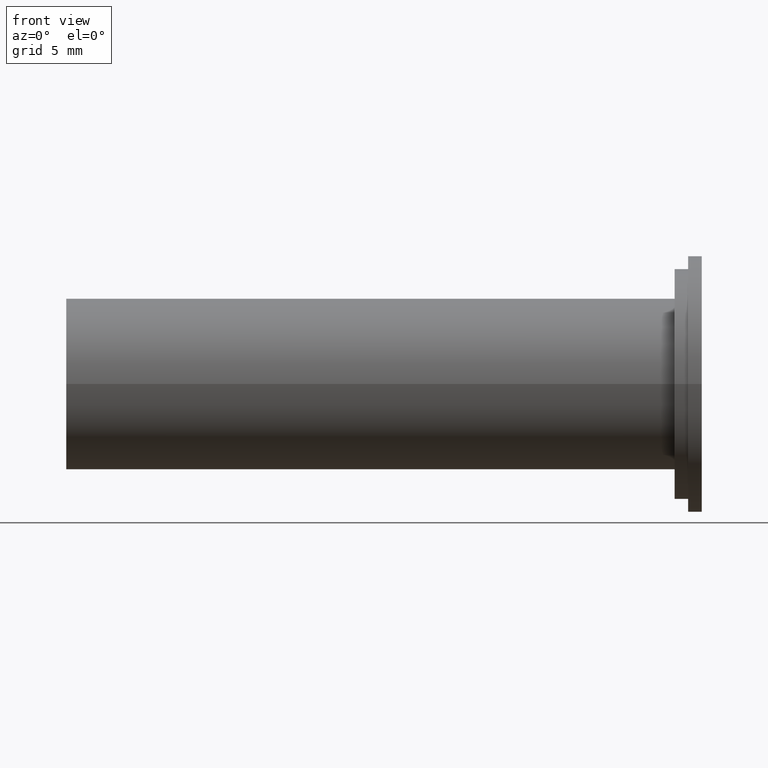
[diagram: clean part render]
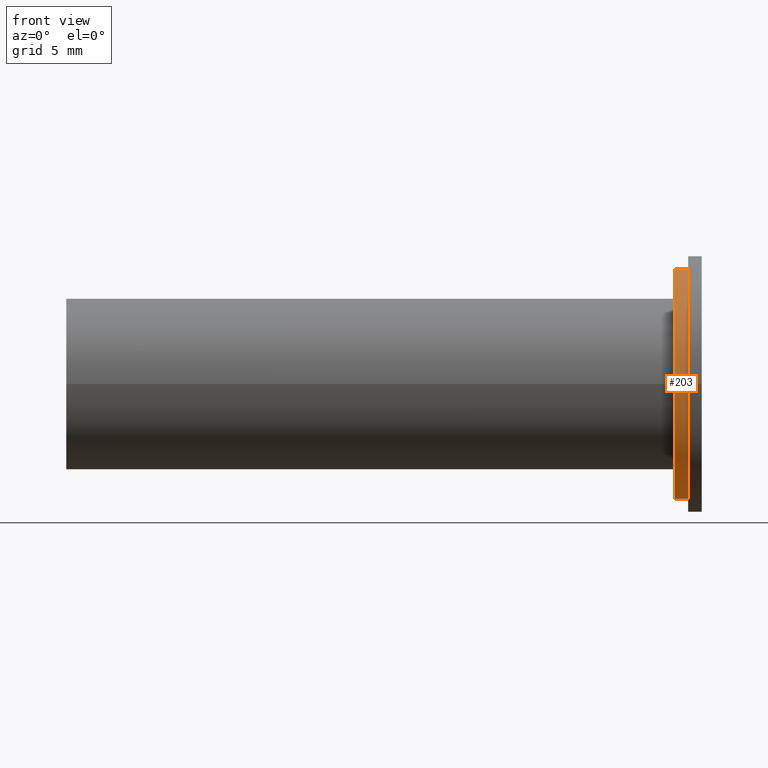
[diagram: same view with one face highlighted and labeled with its STEP entity id]
A machine part, front view. The second image highlights one B-rep face of the part: STEP entity #203.
In plain terms, the highlighted cylindrical surface (bore or boss wall) has radius 8.5 mm, axis along (1, 0, 0).
Its self-contained STEP definition (entity closure, byte-faithful):
#39=FACE_OUTER_BOUND('',#57,.T.);
#57=EDGE_LOOP('',(#179,#180,#181,#182));
#67=LINE('',#380,#77);
#77=VECTOR('',#325,8.5);
#88=CIRCLE('',#245,8.5);
#92=CIRCLE('',#254,8.5);
#103=VERTEX_POINT('',#362);
#107=VERTEX_POINT('',#377);
#125=EDGE_CURVE('',#103,#103,#88,.T.);
#131=EDGE_CURVE('',#107,#107,#92,.T.);
#132=EDGE_CURVE('',#103,#107,#67,.T.);
#179=ORIENTED_EDGE('',*,*,#125,.F.);
#180=ORIENTED_EDGE('',*,*,#132,.T.);
#181=ORIENTED_EDGE('',*,*,#131,.T.);
#182=ORIENTED_EDGE('',*,*,#132,.F.);
#189=CYLINDRICAL_SURFACE('',#255,8.5);
#203=ADVANCED_FACE('',(#39),#189,.T.);
#245=AXIS2_PLACEMENT_3D('',#363,#301,#302);
#254=AXIS2_PLACEMENT_3D('',#378,#321,#322);
#255=AXIS2_PLACEMENT_3D('',#379,#323,#324);
#301=DIRECTION('center_axis',(1.,0.,0.));
#302=DIRECTION('ref_axis',(0.,0.,-1.));
#321=DIRECTION('center_axis',(1.,0.,0.));
#322=DIRECTION('ref_axis',(0.,0.,-1.));
#323=DIRECTION('center_axis',(1.,0.,0.));
#324=DIRECTION('ref_axis',(0.,1.,0.));
#325=DIRECTION('',(-1.,0.,0.));
#362=CARTESIAN_POINT('',(-0.999999999999994,-8.5,-1.04094977927525E-15));
#363=CARTESIAN_POINT('Origin',(-0.999999999999994,0.,0.));
#377=CARTESIAN_POINT('',(-2.,-8.5,-1.04094977927525E-15));
#378=CARTESIAN_POINT('Origin',(-2.,0.,0.));
#379=CARTESIAN_POINT('Origin',(-1.5,0.,0.));
#380=CARTESIAN_POINT('',(-1.5,-8.5,-1.04094977927525E-15));